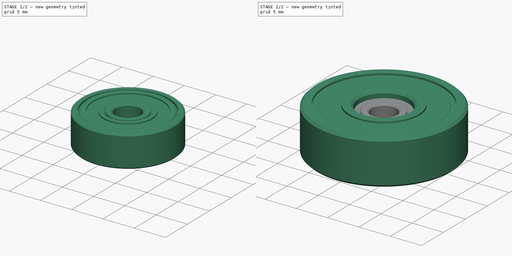
[diagram: build sequence overview — one tinted view per stage of 2, left to right]
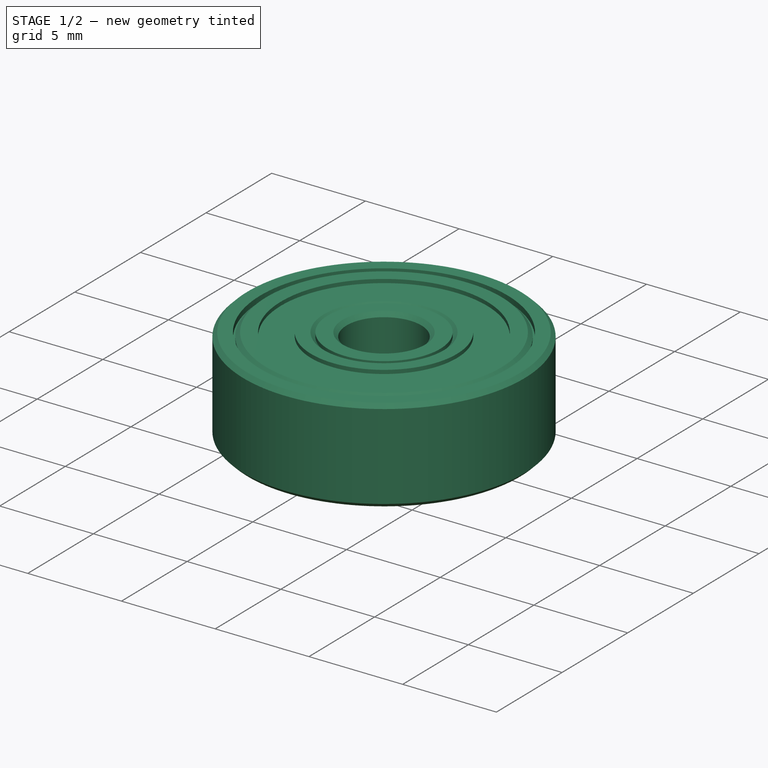
[diagram: stage 1 of 2 — iso view after this stage's code; geometry added in this stage tinted green]
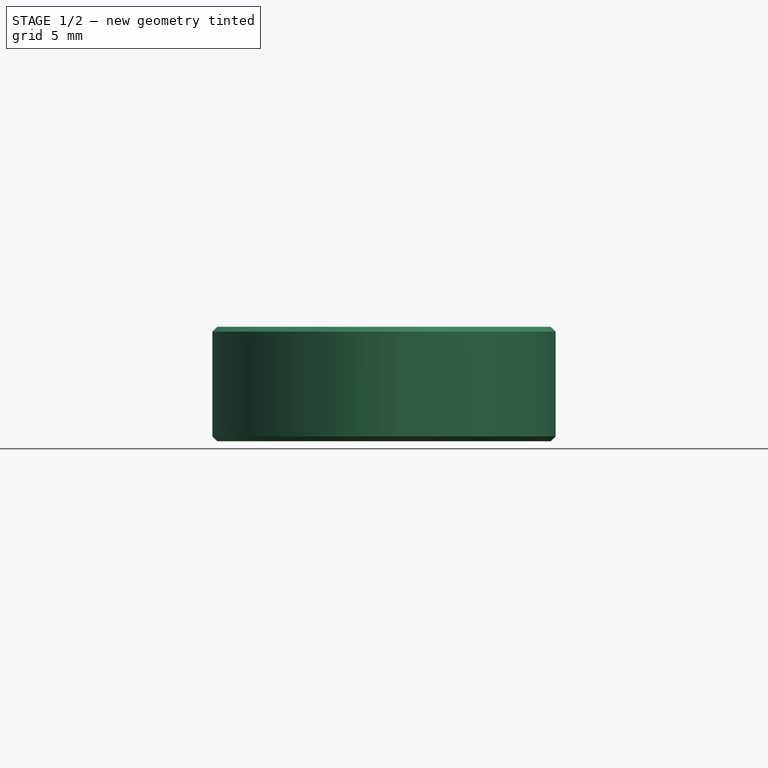
[diagram: stage 1 of 2 — front view after this stage's code; geometry added in this stage tinted green]
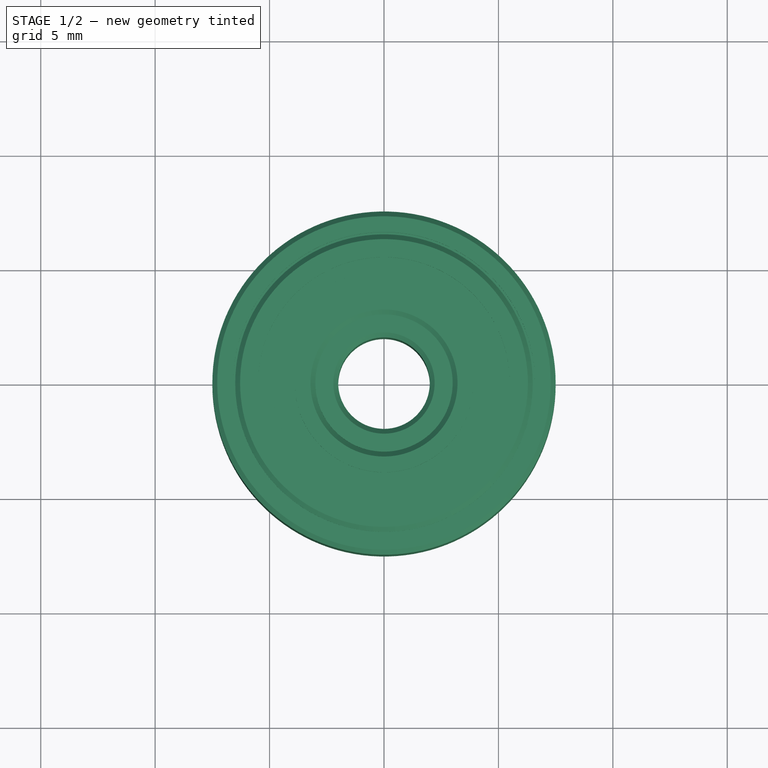
[diagram: stage 1 of 2 — top view after this stage's code; geometry added in this stage tinted green]
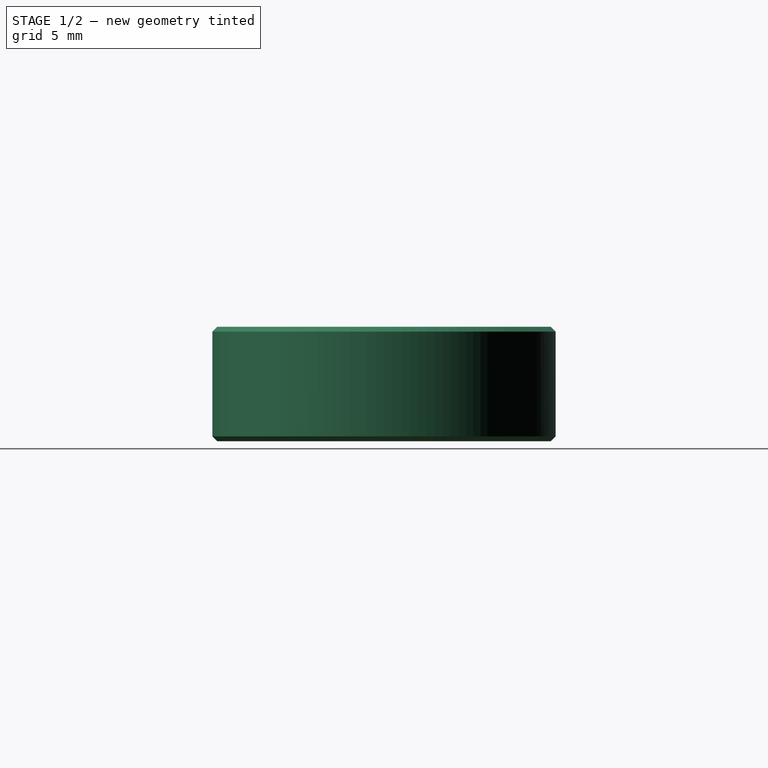
[diagram: stage 1 of 2 — right view after this stage's code; geometry added in this stage tinted green]
FCSTD DOCUMENT  (FreeCAD 0.20R28647 (Git))
Label: BallBearings
License: All rights reserved
LicenseURL: http://en.wikipedia.org/wiki/All_rights_reserved
objects: Sketcher::SketchObject×3, PartDesign::Revolution×3, PartDesign::Body×3
note: 12 computed .brp shape members not serialized (recipe doc carries the construction recipe); baked Part::Feature solids carry a one-line shape summary decoded from their .brp

FEATURE [PartDesign::Body] Body  label="BallBearing 22x8x7 mm"
  Group = -> [Sketch,Revolution]
  Origin = -> Origin
  Tip = -> Revolution
FEATURE [Sketcher::SketchObject] Sketch001
  FullyConstrained = true
  MapMode = 5
  Placement = pos=(0,0,0) rot=(1,0,0;1.5708rad)
  Support = -> [XZ_Plane001]
  sketch-geometry (22):
    g0: LineSegment StartX=-7.5 StartY=2.28787 StartZ=0 EndX=-7.5 EndY=-2.28787 EndZ=0
    g1: LineSegment StartX=-7.5 StartY=-2.28787 StartZ=0 EndX=-7.28787 EndY=-2.5 EndZ=0
    g2: LineSegment StartX=-7.28787 StartY=-2.5 StartZ=0 EndX=-6.6 EndY=-2.5 EndZ=0
    g3: LineSegment StartX=-6.6 StartY=-2.5 StartZ=0 EndX=-6.6 EndY=-2.2 EndZ=0
    g4: LineSegment StartX=-6 StartY=-2.3 StartZ=0 EndX=-4 EndY=-2.3 EndZ=0
    g5: LineSegment StartX=-4 StartY=-2.3 StartZ=0 EndX=-3.9 EndY=-2.2 EndZ=0
    g6: LineSegment StartX=-3.9 StartY=-2.2 StartZ=0 EndX=-3.9 EndY=-2.5 EndZ=0
    g7: LineSegment StartX=-3.9 StartY=-2.5 StartZ=0 EndX=-3.21213 EndY=-2.5 EndZ=0
    g8: LineSegment StartX=-3.21213 StartY=-2.5 StartZ=0 EndX=-3 EndY=-2.28787 EndZ=0
    g9: LineSegment StartX=-3 StartY=-2.28787 StartZ=0 EndX=-3 EndY=2.28787 EndZ=0
    g10: LineSegment StartX=-3 StartY=2.28787 StartZ=0 EndX=-3.21213 EndY=2.5 EndZ=0
    g11: LineSegment StartX=-3.21213 StartY=2.5 StartZ=0 EndX=-3.9 EndY=2.5 EndZ=0
    g12: LineSegment StartX=-3.9 StartY=2.5 StartZ=0 EndX=-3.9 EndY=2.2 EndZ=0
    g13: LineSegment StartX=-3.9 StartY=2.2 StartZ=0 EndX=-4 EndY=2.3 EndZ=0
    g14: LineSegment StartX=-4 StartY=2.3 StartZ=0 EndX=-6 EndY=2.3 EndZ=0
    g15: LineSegment StartX=-6 StartY=2.3 StartZ=0 EndX=-6.1 EndY=2.2 EndZ=0
    g16: LineSegment StartX=-6.1 StartY=2.2 StartZ=0 EndX=-6.6 EndY=2.2 EndZ=0
    g17: LineSegment StartX=-6.6 StartY=2.2 StartZ=0 EndX=-6.6 EndY=2.5 EndZ=0
    g18: LineSegment StartX=-6.6 StartY=2.5 StartZ=0 EndX=-7.28787 EndY=2.5 EndZ=0
    g19: LineSegment StartX=-7.28787 StartY=2.5 StartZ=0 EndX=-7.5 EndY=2.28787 EndZ=0
    g20: LineSegment StartX=-6 StartY=-2.3 StartZ=0 EndX=-6.1 EndY=-2.2 EndZ=0
    g21: LineSegment StartX=-6.1 StartY=-2.2 StartZ=0 EndX=-6.6 EndY=-2.2 EndZ=0
  constraints (61):
    c: Vertical(g0)
    c: Coincident(g0,g1)
    c: Coincident(g1,g2)
    c: Horizontal(g2)
    c: Coincident(g2,g3)
    c: Coincident(g4,g5)
    c: Coincident(g5,g6)
    c: Coincident(g6,g7)
    c: Coincident(g7,g8)
    c: Coincident(g8,g9)
    c: Coincident(g9,g10)
    c: Coincident(g10,g11)
    c: Horizontal(g11)
    c: Coincident(g11,g12)
    c: Vertical(g12)
    c: Coincident(g12,g13)
    c: Coincident(g13,g14)
    c: Horizontal(g14)
    c: Coincident(g14,g15)
    c: Coincident(g15,g16)
    c: Horizontal(g16)
    c: Coincident(g16,g17)
    c: Vertical(g17)
    c: Coincident(g17,g18)
    c: Horizontal(g18)
    c: Coincident(g18,g19)
    c: Coincident(g19,g0)
    c: Coincident(g4,g20)
    c: Coincident(g20,g21)
    c: Coincident(g21,g3)
    c: Vertical(g3)
    c: Horizontal(g21)
    c: Horizontal(g4)
    c: Vertical(g6)
    c: Horizontal(g7)
    c: Horizontal(g11,g17)
    c: Symmetric(g8,g9,g-1)
    c: Symmetric(g10,g7,g-1)
    c: Equal(g7,g11)
    c: Symmetric(g13,g4,g-1)
    c: Equal(g6,g12)
    c: Angle(g8) = 0.785398
    c: Parallel(g8,g19)
    c: Parallel(g15,g5)
    c: Parallel(g5,g8)
    c: Parallel(g13,g20)
    c: Parallel(g20,g1)
    c: Equal(g2,g18)
    c: Symmetric(g20,g15,g-1)
    c: Equal(g12,g17)
    c: Symmetric(g18,g1,g-1)
    c: DistanceY(g7,g10) = 5
    c: DistanceX(g8) = -3
    c: Distance(g8) = 0.3
    c: DistanceY(g6,g4) = 0.2
    c: Equal(g1,g8)
    c: Equal(g7,g2)
    c: DistanceY(g6,g6) = 0.3
    c: DistanceX(g0) = -7.5
    c: DistanceX(g4,g4) = 2
    c: DistanceX(g21,g21) = 0.5
FEATURE [PartDesign::Revolution] Revolution001
  Angle = 360
  Axis = (0,-2e-16,1)
  Base = (0,0,0)
  Placement = pos=(0,0,0) rot=(1,0,0;1.5708rad)
  Profile = -> Sketch001
  ReferenceAxis = -> Sketch001 [V_Axis]
FEATURE [PartDesign::Body] Body001  label="BallBearing 15x6x5 mm"
  Group = -> [Sketch001,Revolution001]
  Origin = -> Origin001
  Placement = pos=(0,-30,0) rot=(0,0,1;0rad)
  Tip = -> Revolution001
FEATURE [Sketcher::SketchObject] Sketch002
  FullyConstrained = true
  MapMode = 5
  Placement = pos=(0,0,0) rot=(1,0,0;1.5708rad)
  Support = -> [XZ_Plane002]
  sketch-geometry (22):
    g0: LineSegment StartX=-6.5 StartY=2.28787 StartZ=0 EndX=-6.5 EndY=-2.28787 EndZ=0
    g1: LineSegment StartX=-6.5 StartY=-2.28787 StartZ=0 EndX=-6.28787 EndY=-2.5 EndZ=0
    g2: LineSegment StartX=-6.28787 StartY=-2.5 StartZ=0 EndX=-5.5 EndY=-2.5 EndZ=0
    g3: LineSegment StartX=-5.5 StartY=-2.5 StartZ=0 EndX=-5.5 EndY=-2.2 EndZ=0
    g4: LineSegment StartX=-4.9 StartY=-2.3 StartZ=0 EndX=-3.1 EndY=-2.3 EndZ=0
    g5: LineSegment StartX=-3.1 StartY=-2.3 StartZ=0 EndX=-3 EndY=-2.2 EndZ=0
    g6: LineSegment StartX=-3 StartY=-2.2 StartZ=0 EndX=-3 EndY=-2.5 EndZ=0
    g7: LineSegment StartX=-3 StartY=-2.5 StartZ=0 EndX=-2.21213 EndY=-2.5 EndZ=0
    g8: LineSegment StartX=-2.21213 StartY=-2.5 StartZ=0 EndX=-2 EndY=-2.28787 EndZ=0
    g9: LineSegment StartX=-2 StartY=-2.28787 StartZ=0 EndX=-2 EndY=2.28787 EndZ=0
    g10: LineSegment StartX=-2 StartY=2.28787 StartZ=0 EndX=-2.21213 EndY=2.5 EndZ=0
    g11: LineSegment StartX=-2.21213 StartY=2.5 StartZ=0 EndX=-3 EndY=2.5 EndZ=0
    g12: LineSegment StartX=-3 StartY=2.5 StartZ=0 EndX=-3 EndY=2.2 EndZ=0
    g13: LineSegment StartX=-3 StartY=2.2 StartZ=0 EndX=-3.1 EndY=2.3 EndZ=0
    g14: LineSegment StartX=-3.1 StartY=2.3 StartZ=0 EndX=-4.9 EndY=2.3 EndZ=0
    g15: LineSegment StartX=-4.9 StartY=2.3 StartZ=0 EndX=-5 EndY=2.2 EndZ=0
    g16: LineSegment StartX=-5 StartY=2.2 StartZ=0 EndX=-5.5 EndY=2.2 EndZ=0
    g17: LineSegment StartX=-5.5 StartY=2.2 StartZ=0 EndX=-5.5 EndY=2.5 EndZ=0
    g18: LineSegment StartX=-5.5 StartY=2.5 StartZ=0 EndX=-6.28787 EndY=2.5 EndZ=0
    g19: LineSegment StartX=-6.28787 StartY=2.5 StartZ=0 EndX=-6.5 EndY=2.28787 EndZ=0
    g20: LineSegment StartX=-4.9 StartY=-2.3 StartZ=0 EndX=-5 EndY=-2.2 EndZ=0
    g21: LineSegment StartX=-5 StartY=-2.2 StartZ=0 EndX=-5.5 EndY=-2.2 EndZ=0
  constraints (61):
    c: Vertical(g0)
    c: Coincident(g0,g1)
    c: Coincident(g1,g2)
    c: Horizontal(g2)
    c: Coincident(g2,g3)
    c: Coincident(g4,g5)
    c: Coincident(g5,g6)
    c: Coincident(g6,g7)
    c: Coincident(g7,g8)
    c: Coincident(g8,g9)
    c: Coincident(g9,g10)
    c: Coincident(g10,g11)
    c: Horizontal(g11)
    c: Coincident(g11,g12)
    c: Vertical(g12)
    c: Coincident(g12,g13)
    c: Coincident(g13,g14)
    c: Horizontal(g14)
    c: Coincident(g14,g15)
    c: Coincident(g15,g16)
    c: Horizontal(g16)
    c: Coincident(g16,g17)
    c: Vertical(g17)
    c: Coincident(g17,g18)
    c: Horizontal(g18)
    c: Coincident(g18,g19)
    c: Coincident(g19,g0)
    c: Coincident(g4,g20)
    c: Coincident(g20,g21)
    c: Coincident(g21,g3)
    c: Vertical(g3)
    c: Horizontal(g21)
    c: Horizontal(g4)
    c: Vertical(g6)
    c: Horizontal(g7)
    c: Horizontal(g11,g17)
    c: Symmetric(g8,g9,g-1)
    c: Symmetric(g10,g7,g-1)
    c: Equal(g7,g11)
    c: Symmetric(g13,g4,g-1)
    c: Equal(g6,g12)
    c: Angle(g8) = 0.785398
    c: Parallel(g8,g19)
    c: Parallel(g15,g5)
    c: Parallel(g5,g8)
    c: Parallel(g13,g20)
    c: Parallel(g20,g1)
    c: Equal(g2,g18)
    c: Symmetric(g20,g15,g-1)
    c: Equal(g12,g17)
    c: Symmetric(g18,g1,g-1)
    c: DistanceY(g7,g10) = 5
    c: DistanceX(g8) = -2
    c: Distance(g8) = 0.3
    c: DistanceY(g6,g4) = 0.2
    c: Equal(g1,g8)
    c: Equal(g7,g2)
    c: DistanceY(g6,g6) = 0.3
    c: DistanceX(g0) = -6.5
    c: DistanceX(g4,g4) = 1.8
    c: DistanceX(g21,g21) = 0.5
FEATURE [PartDesign::Revolution] Revolution002
  Angle = 360
  Axis = (0,-2e-16,1)
  Base = (0,0,0)
  Placement = pos=(0,0,0) rot=(1,0,0;1.5708rad)
  Profile = -> Sketch002
  ReferenceAxis = -> Sketch002 [V_Axis]
FEATURE [PartDesign::Body] Body002  label="BallBearing 13x4x5 mm"
  Group = -> [Sketch002,Revolution002]
  Origin = -> Origin002
  Placement = pos=(0,-60,0) rot=(0,0,1;0rad)
  Tip = -> Revolution002
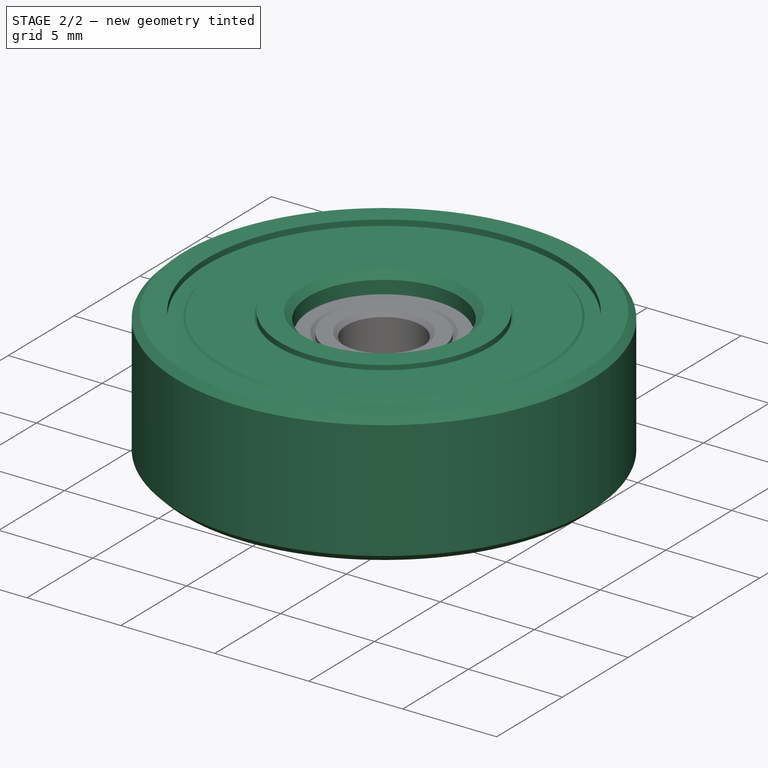
[diagram: stage 2 of 2 — iso view after this stage's code; geometry added in this stage tinted green]
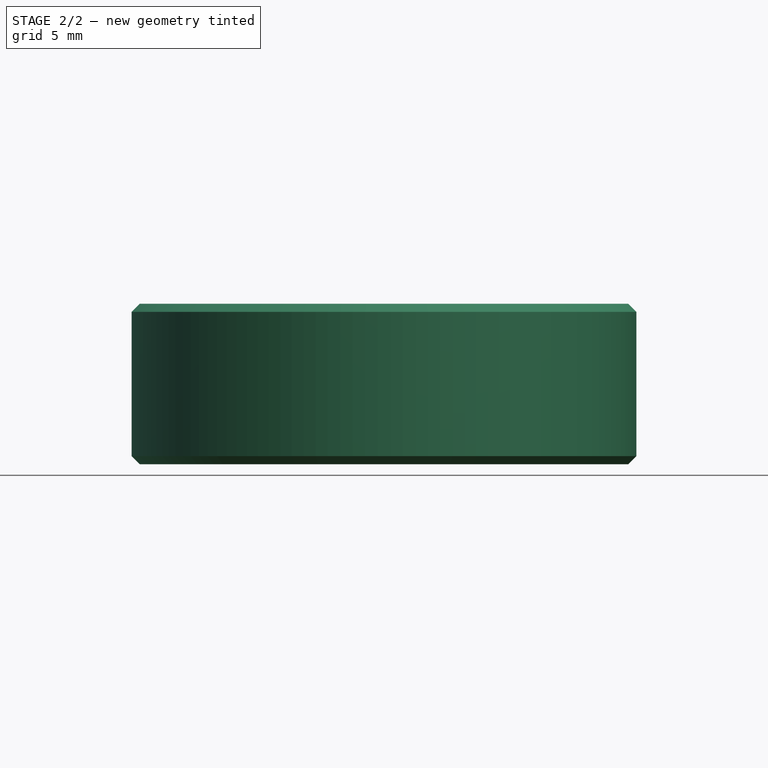
[diagram: stage 2 of 2 — front view after this stage's code; geometry added in this stage tinted green]
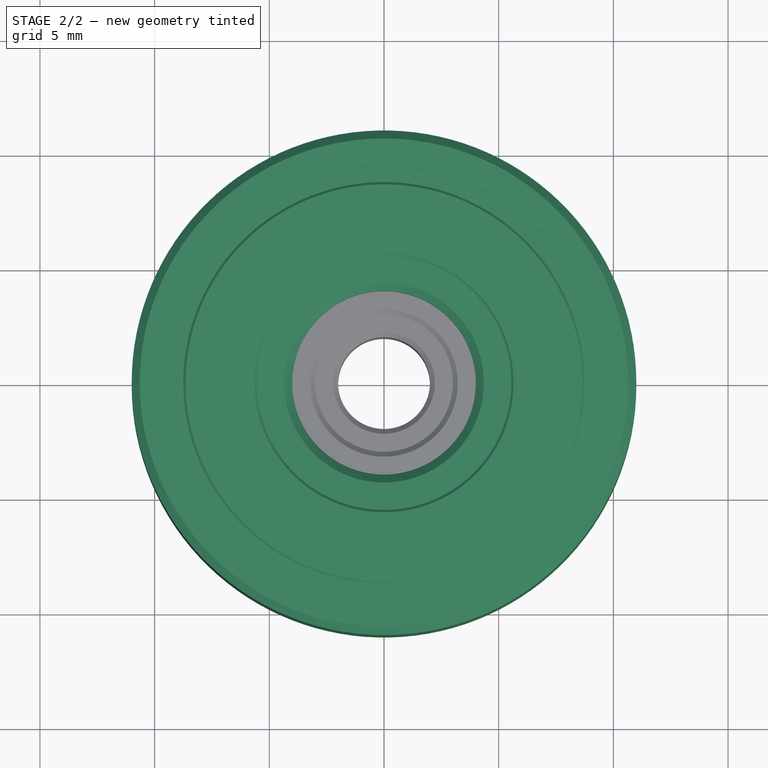
[diagram: stage 2 of 2 — top view after this stage's code; geometry added in this stage tinted green]
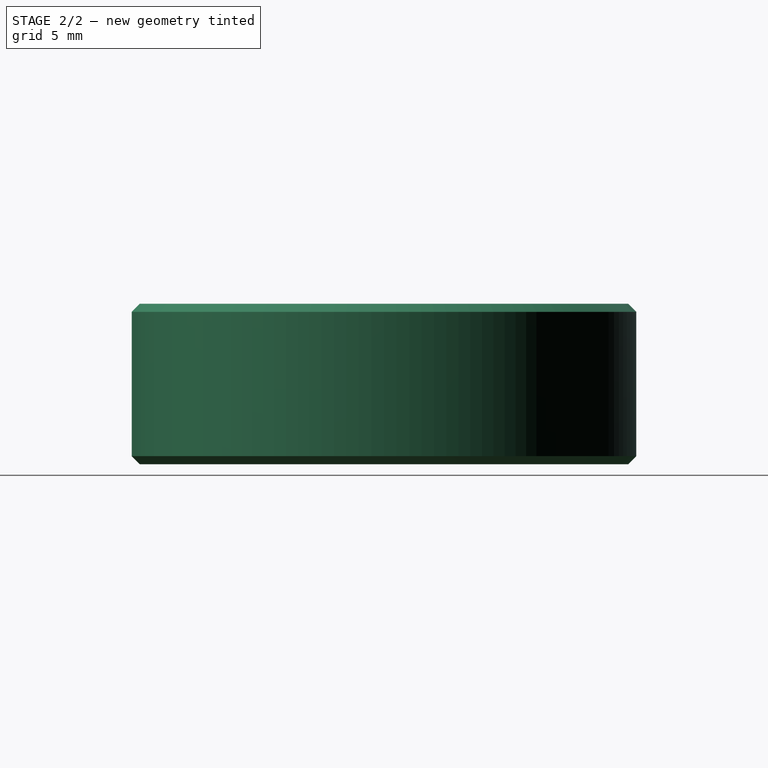
[diagram: stage 2 of 2 — right view after this stage's code; geometry added in this stage tinted green]
FEATURE [Sketcher::SketchObject] Sketch
  FullyConstrained = true
  MapMode = 5
  Placement = pos=(0,0,0) rot=(1,0,0;1.5708rad)
  Support = -> [XZ_Plane]
  sketch-geometry (22):
    g0: LineSegment StartX=-11 StartY=3.14645 StartZ=0 EndX=-11 EndY=-3.14645 EndZ=0
    g1: LineSegment StartX=-11 StartY=-3.14645 StartZ=0 EndX=-10.6464 EndY=-3.5 EndZ=0
    g2: LineSegment StartX=-10.6464 StartY=-3.5 StartZ=0 EndX=-9.45 EndY=-3.5 EndZ=0
    g3: LineSegment StartX=-9.45 StartY=-3.5 StartZ=0 EndX=-9.45 EndY=-3.2 EndZ=0
    g4: LineSegment StartX=-8.65 StartY=-3.3 StartZ=0 EndX=-5.65 EndY=-3.3 EndZ=0
    g5: LineSegment StartX=-5.65 StartY=-3.3 StartZ=0 EndX=-5.55 EndY=-3.2 EndZ=0
    g6: LineSegment StartX=-5.55 StartY=-3.2 StartZ=0 EndX=-5.55 EndY=-3.5 EndZ=0
    g7: LineSegment StartX=-5.55 StartY=-3.5 StartZ=0 EndX=-4.35355 EndY=-3.5 EndZ=0
    g8: LineSegment StartX=-4.35355 StartY=-3.5 StartZ=0 EndX=-4 EndY=-3.14645 EndZ=0
    g9: LineSegment StartX=-4 StartY=-3.14645 StartZ=0 EndX=-4 EndY=3.14645 EndZ=0
    g10: LineSegment StartX=-4 StartY=3.14645 StartZ=0 EndX=-4.35355 EndY=3.5 EndZ=0
    g11: LineSegment StartX=-4.35355 StartY=3.5 StartZ=0 EndX=-5.55 EndY=3.5 EndZ=0
    g12: LineSegment StartX=-5.55 StartY=3.5 StartZ=0 EndX=-5.55 EndY=3.2 EndZ=0
    g13: LineSegment StartX=-5.55 StartY=3.2 StartZ=0 EndX=-5.65 EndY=3.3 EndZ=0
    g14: LineSegment StartX=-5.65 StartY=3.3 StartZ=0 EndX=-8.65 EndY=3.3 EndZ=0
    g15: LineSegment StartX=-8.65 StartY=3.3 StartZ=0 EndX=-8.75 EndY=3.2 EndZ=0
    g16: LineSegment StartX=-8.75 StartY=3.2 StartZ=0 EndX=-9.45 EndY=3.2 EndZ=0
    g17: LineSegment StartX=-9.45 StartY=3.2 StartZ=0 EndX=-9.45 EndY=3.5 EndZ=0
    g18: LineSegment StartX=-9.45 StartY=3.5 StartZ=0 EndX=-10.6464 EndY=3.5 EndZ=0
    g19: LineSegment StartX=-10.6464 StartY=3.5 StartZ=0 EndX=-11 EndY=3.14645 EndZ=0
    g20: LineSegment StartX=-8.65 StartY=-3.3 StartZ=0 EndX=-8.75 EndY=-3.2 EndZ=0
    g21: LineSegment StartX=-8.75 StartY=-3.2 StartZ=0 EndX=-9.45 EndY=-3.2 EndZ=0
  constraints (61):
    c: Vertical(g0)
    c: Coincident(g0,g1)
    c: Coincident(g1,g2)
    c: Horizontal(g2)
    c: Coincident(g2,g3)
    c: Coincident(g4,g5)
    c: Coincident(g5,g6)
    c: Coincident(g6,g7)
    c: Coincident(g7,g8)
    c: Coincident(g8,g9)
    c: Coincident(g9,g10)
    c: Coincident(g10,g11)
    c: Horizontal(g11)
    c: Coincident(g11,g12)
    c: Vertical(g12)
    c: Coincident(g12,g13)
    c: Coincident(g13,g14)
    c: Horizontal(g14)
    c: Coincident(g14,g15)
    c: Coincident(g15,g16)
    c: Horizontal(g16)
    c: Coincident(g16,g17)
    c: Vertical(g17)
    c: Coincident(g17,g18)
    c: Horizontal(g18)
    c: Coincident(g18,g19)
    c: Coincident(g19,g0)
    c: Coincident(g4,g20)
    c: Coincident(g20,g21)
    c: Coincident(g21,g3)
    c: Vertical(g3)
    c: Horizontal(g21)
    c: Horizontal(g4)
    c: Vertical(g6)
    c: Horizontal(g7)
    c: Horizontal(g11,g17)
    c: Symmetric(g8,g9,g-1)
    c: Symmetric(g10,g7,g-1)
    c: Equal(g7,g11)
    c: Symmetric(g13,g4,g-1)
    c: Equal(g6,g12)
    c: Angle(g8) = 0.785398
    c: Parallel(g8,g19)
    c: Parallel(g15,g5)
    c: Parallel(g5,g8)
    c: Parallel(g13,g20)
    c: Parallel(g20,g1)
    c: Equal(g2,g18)
    c: Symmetric(g20,g15,g-1)
    c: Equal(g12,g17)
    c: Symmetric(g18,g1,g-1)
    c: DistanceY(g7,g10) = 7
    c: DistanceX(g8) = -4
    c: Distance(g8) = 0.5
    c: DistanceY(g6,g4) = 0.2
    c: Equal(g1,g8)
    c: Equal(g7,g2)
    c: DistanceY(g6,g6) = 0.3
    c: DistanceX(g0) = -11
    c: DistanceX(g4,g4) = 3
    c: DistanceX(g21,g21) = 0.7
FEATURE [PartDesign::Revolution] Revolution
  Angle = 360
  Axis = (0,2e-16,1)
  Base = (0,0,0)
  Placement = pos=(0,0,0) rot=(1,0,0;1.5708rad)
  Profile = -> Sketch
  ReferenceAxis = -> Sketch [V_Axis]
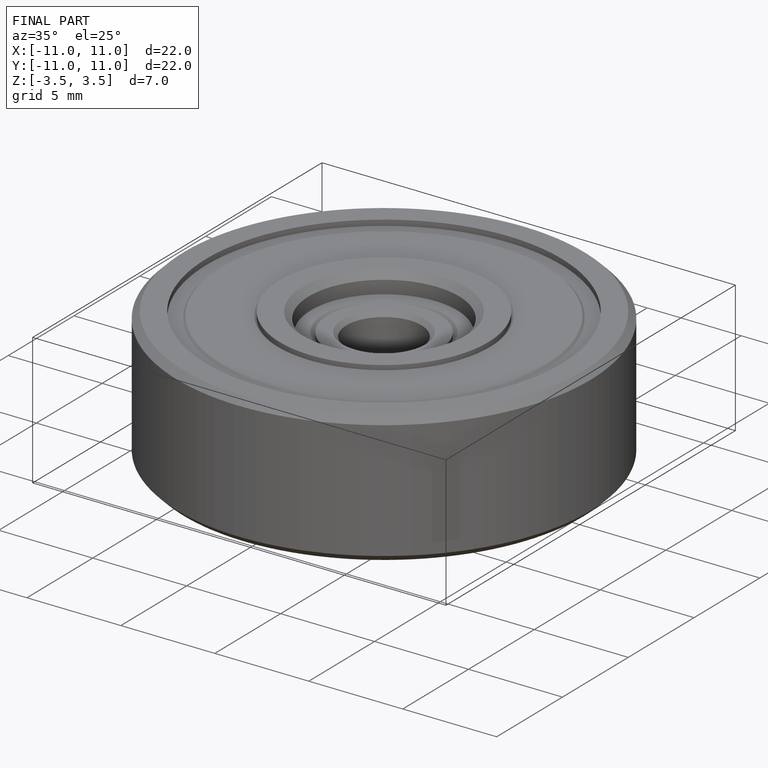
[diagram: finished part — iso view with bounding-box wireframe]
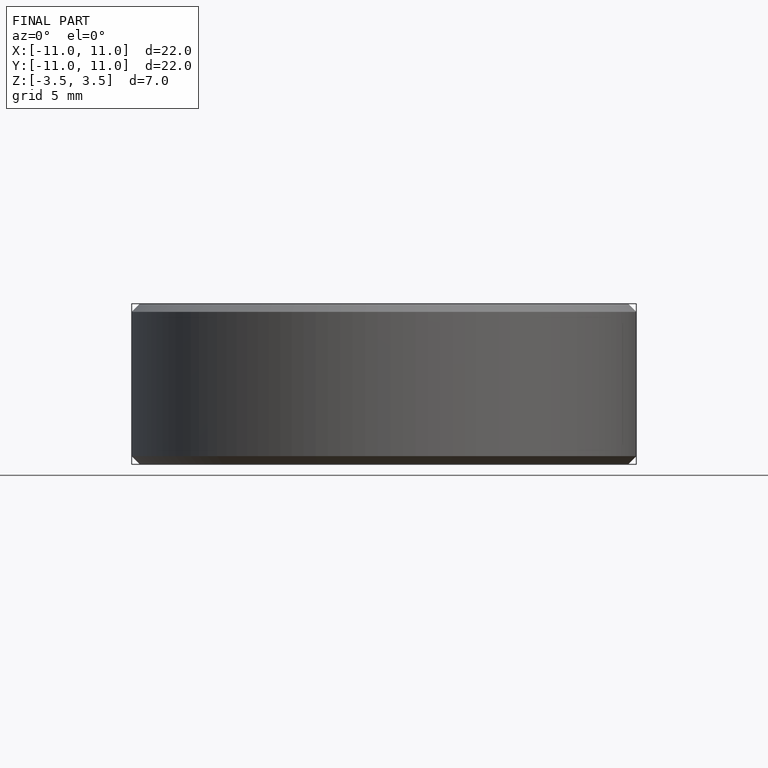
[diagram: finished part — front view with bounding-box wireframe]
